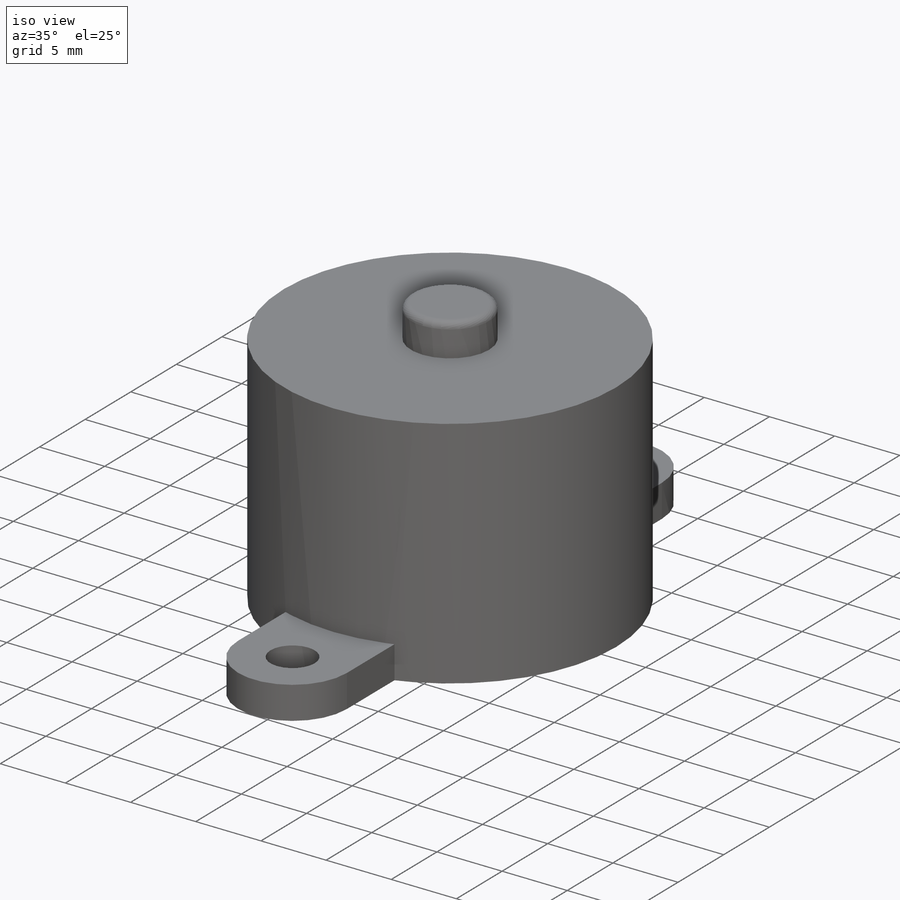
[diagram: iso view]
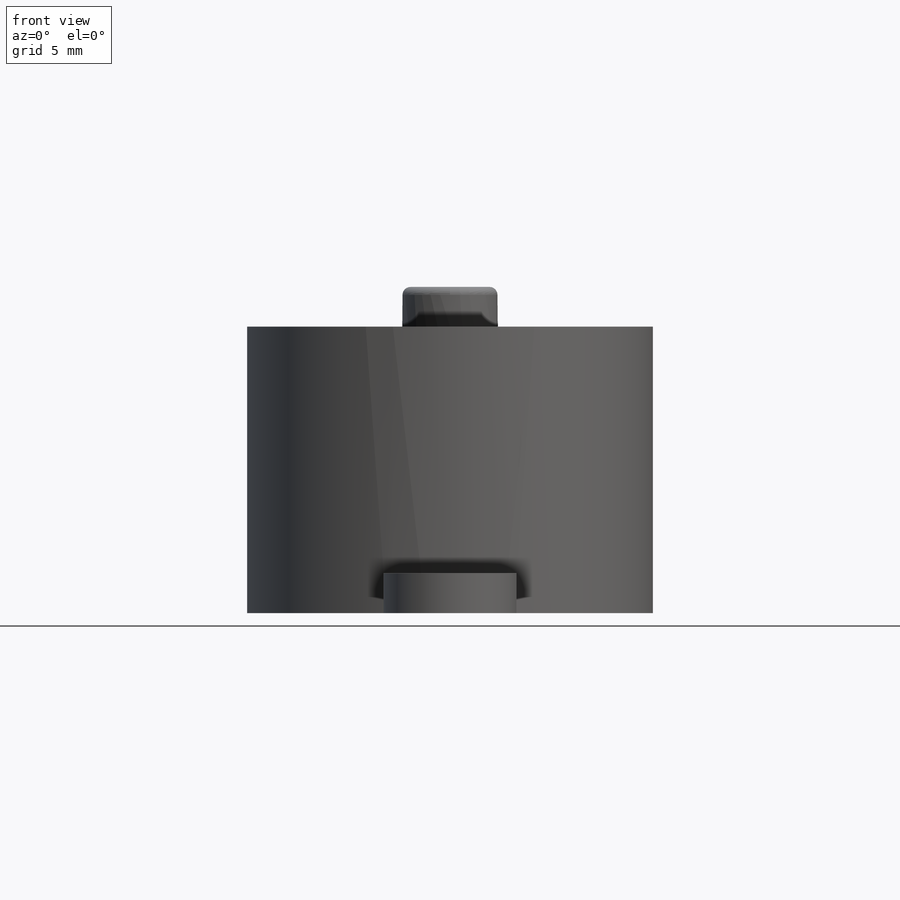
[diagram: front view]
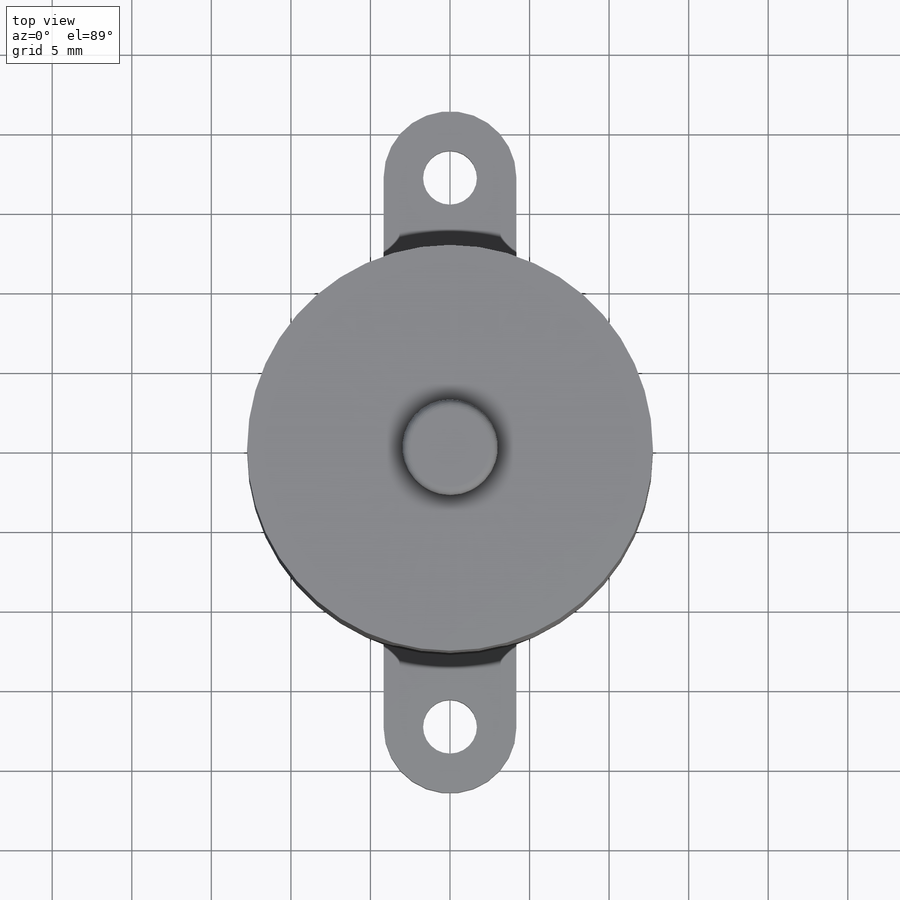
[diagram: top view]
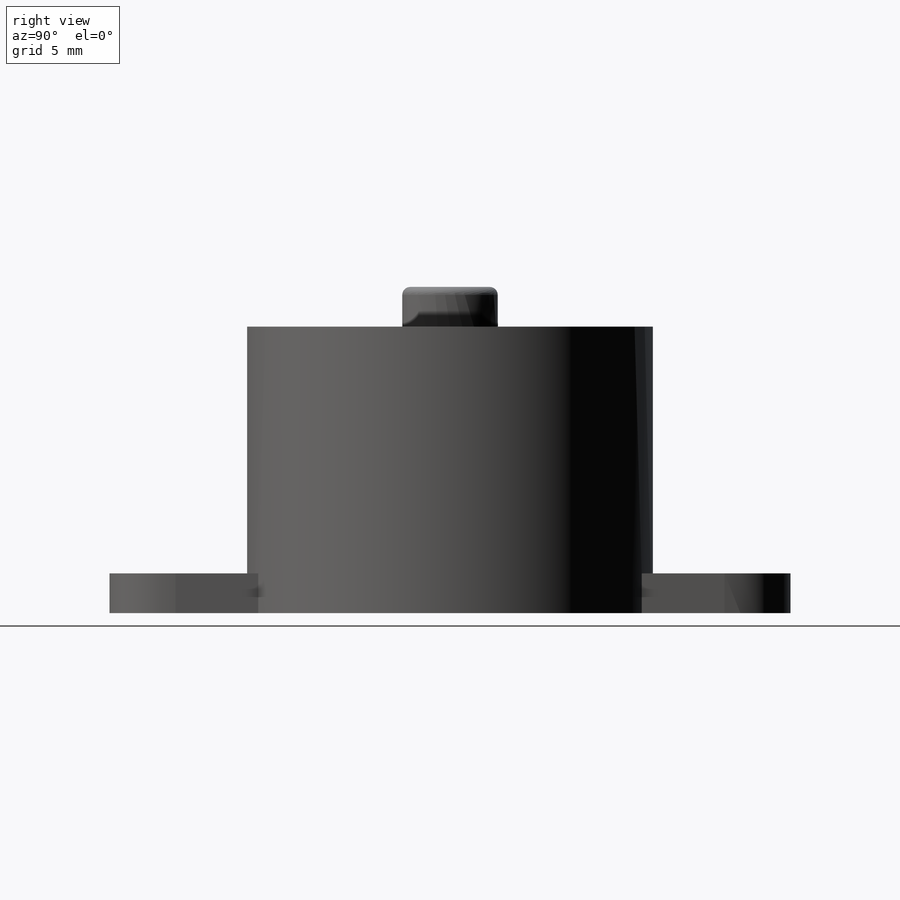
[diagram: right view]
SOLIDWORKS PART (.sldprt)
format: sldprt  version: not decoded by parser v0  size: 172,544 bytes
history: native  units: mm
features: sketch x3, extrude x3, material x1, fillet x1, mirror x1 (+11 scaffold rows collapsed)
feature tree (20):
  scaffold x11  (default folders/planes/origin — collapsed)
  material  "Material <not specified>"
  sketch  "Sketch1"  dims[D1=25.5mm]
  extrude  "Boss-Extrude1"  Depth=18mm
  sketch  "Sketch2"  dims[D1=6.0mm]
  extrude  "Boss-Extrude2"  Depth=2.5mm
  fillet  "Fillet1"  Radius=0.5mm
  sketch  "Sketch3"  dims[c1.D3=4.175mm c1.D1=8.35mm c1.D2=4.175mm c2.D3=~17.252376mm]
  extrude  "Boss-Extrude3"  Depth=2.5mm
  mirror  "Mirror1"
decode coverage: 7 of 8 modeling features carry decoded parameters
note: ~ marks probable driven/reference dimensions
note: suppression state not decoded; provenance and decode notes live in map.json
